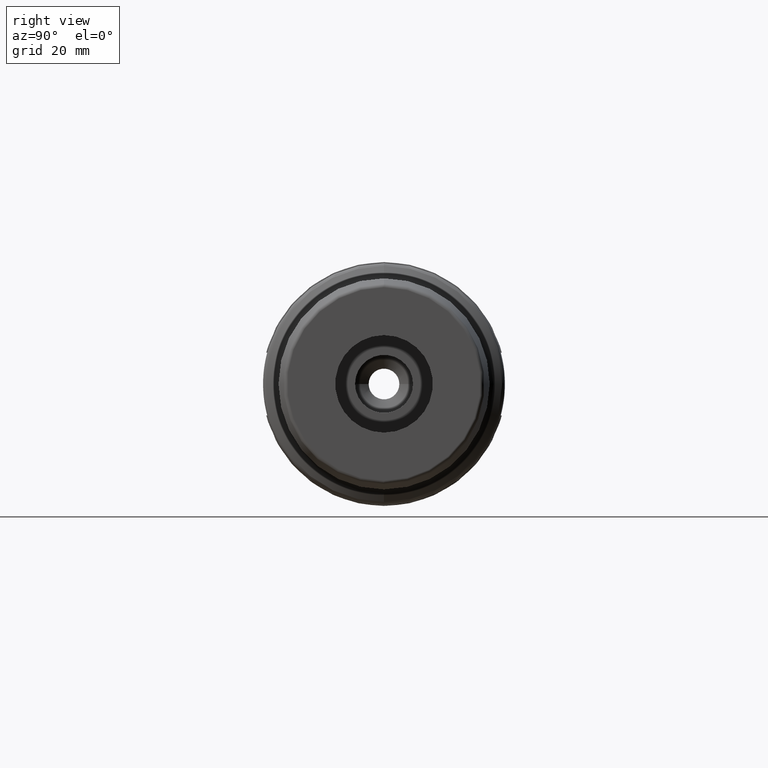
[diagram: clean part render]
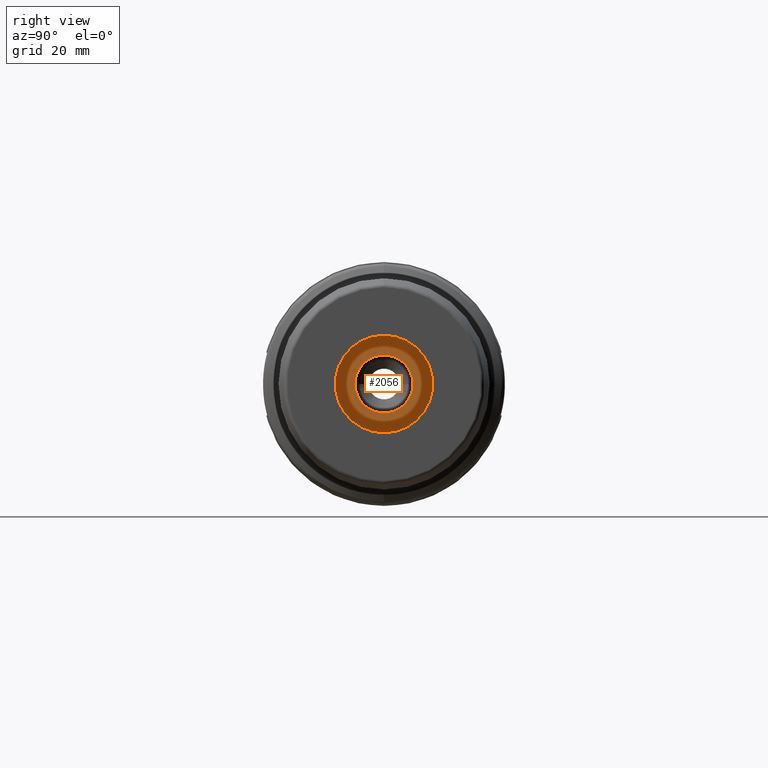
[diagram: same view with one face highlighted and labeled with its STEP entity id]
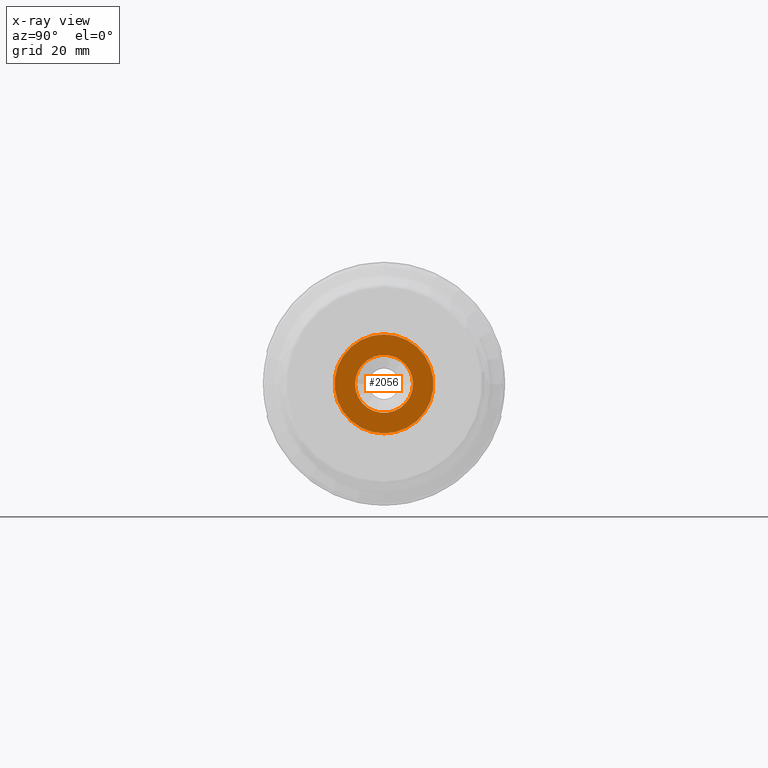
[diagram: x-ray of the same camera — body ghosted, the highlighted face saturated]
A machine part, right view. The second image highlights one B-rep face of the part: STEP entity #2056.
The next image is the same camera in x-ray: the body ghosted, the highlighted face saturated — about 5% of this face is hidden behind the body in this view.
In plain terms, the highlighted planar face has unit normal (1, 0, 0).
Its self-contained STEP definition (entity closure, byte-faithful):
#176=CARTESIAN_POINT('',(4.1E1,0.E0,0.E0));
#177=DIRECTION('',(1.E0,0.E0,0.E0));
#178=DIRECTION('',(0.E0,-1.E0,0.E0));
#179=AXIS2_PLACEMENT_3D('',#176,#177,#178);
#181=CARTESIAN_POINT('',(4.1E1,0.E0,0.E0));
#182=DIRECTION('',(1.E0,0.E0,0.E0));
#183=DIRECTION('',(0.E0,1.E0,0.E0));
#184=AXIS2_PLACEMENT_3D('',#181,#182,#183);
#194=CARTESIAN_POINT('',(4.1E1,0.E0,0.E0));
#195=DIRECTION('',(-1.E0,0.E0,0.E0));
#196=DIRECTION('',(0.E0,0.E0,-1.E0));
#197=AXIS2_PLACEMENT_3D('',#194,#195,#196);
#199=CARTESIAN_POINT('',(4.1E1,0.E0,0.E0));
#200=DIRECTION('',(1.E0,0.E0,0.E0));
#201=DIRECTION('',(0.E0,0.E0,-1.E0));
#202=AXIS2_PLACEMENT_3D('',#199,#200,#201);
#1587=CARTESIAN_POINT('',(4.1E1,0.E0,-1.29E1));
#1589=VERTEX_POINT('',#1587);
#1641=CARTESIAN_POINT('',(4.1E1,0.E0,1.29E1));
#1643=VERTEX_POINT('',#1641);
#1757=CARTESIAN_POINT('',(4.1E1,-7.55E0,0.E0));
#1758=CARTESIAN_POINT('',(4.1E1,7.55E0,0.E0));
#1759=VERTEX_POINT('',#1757);
#1760=VERTEX_POINT('',#1758);
#2040=CARTESIAN_POINT('',(4.1E1,0.E0,0.E0));
#2041=DIRECTION('',(1.E0,0.E0,0.E0));
#2042=DIRECTION('',(0.E0,0.E0,1.E0));
#2043=AXIS2_PLACEMENT_3D('',#2040,#2041,#2042);
#2044=PLANE('',#2043);
#2046=ORIENTED_EDGE('',*,*,#2045,.T.);
#2048=ORIENTED_EDGE('',*,*,#2047,.F.);
#2049=EDGE_LOOP('',(#2046,#2048));
#2050=FACE_OUTER_BOUND('',#2049,.F.);
#2052=ORIENTED_EDGE('',*,*,#2051,.T.);
#2053=ORIENTED_EDGE('',*,*,#2030,.T.);
#2054=EDGE_LOOP('',(#2052,#2053));
#2055=FACE_BOUND('',#2054,.F.);
#2056=ADVANCED_FACE('',(#2050,#2055),#2044,.T.);
#180=CIRCLE('',#179,7.55E0);
#185=CIRCLE('',#184,7.55E0);
#198=CIRCLE('',#197,1.29E1);
#203=CIRCLE('',#202,1.29E1);
#2030=EDGE_CURVE('',#1760,#1759,#185,.T.);
#2045=EDGE_CURVE('',#1589,#1643,#198,.T.);
#2047=EDGE_CURVE('',#1589,#1643,#203,.T.);
#2051=EDGE_CURVE('',#1759,#1760,#180,.T.);